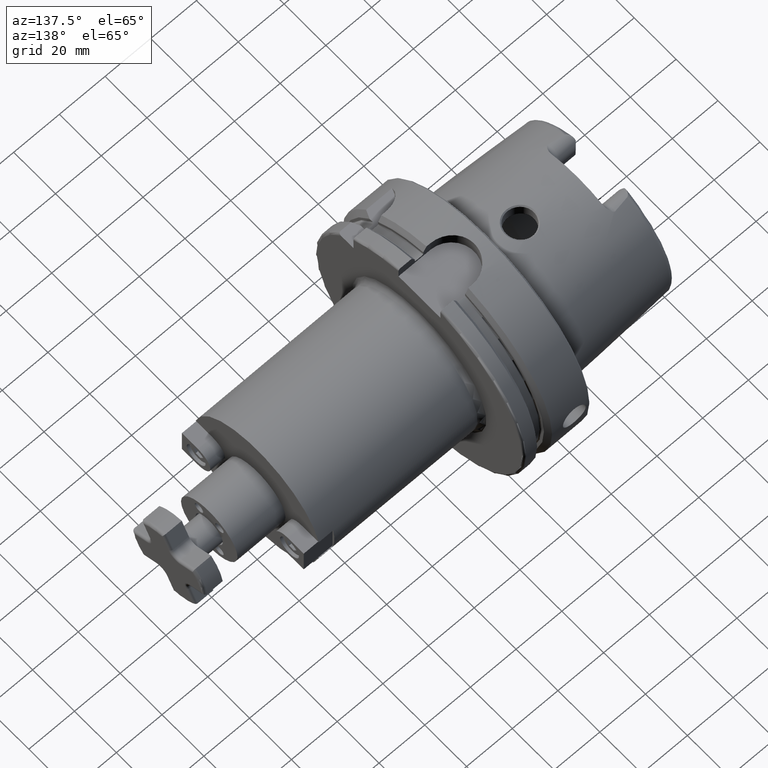
[diagram: clean part render]
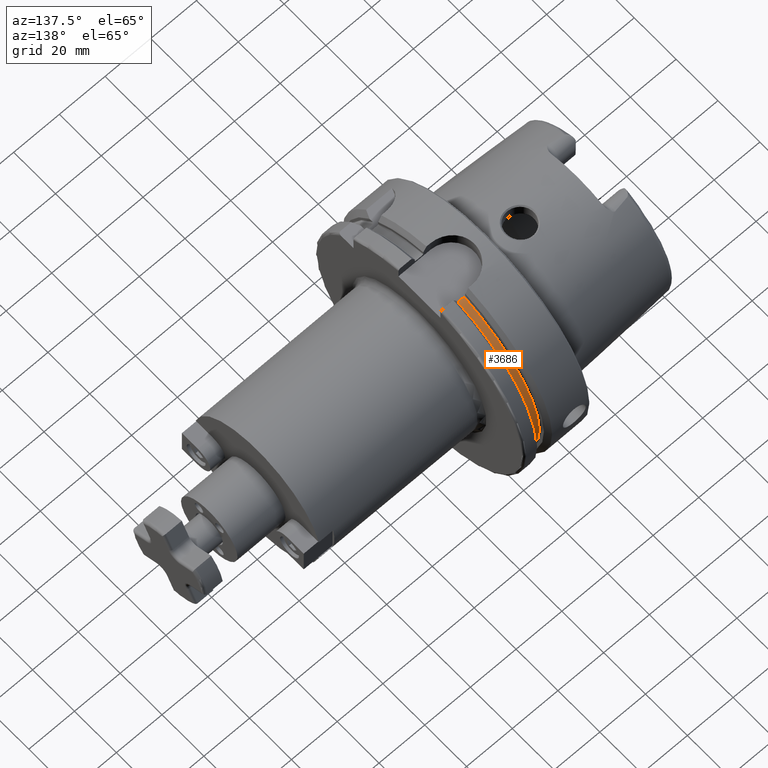
[diagram: same view with one face highlighted and labeled with its STEP entity id]
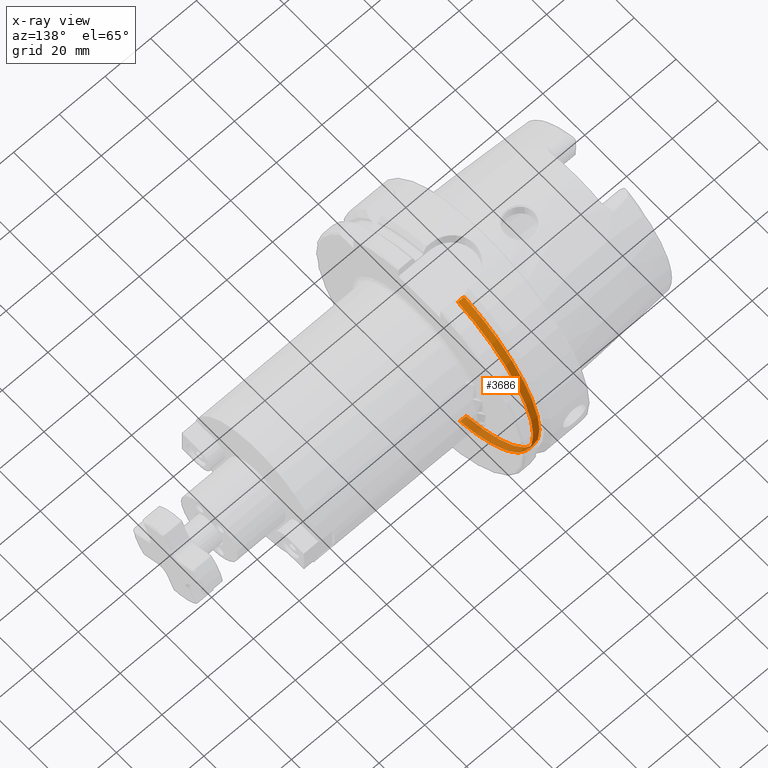
[diagram: x-ray of the same camera — body ghosted, the highlighted face saturated]
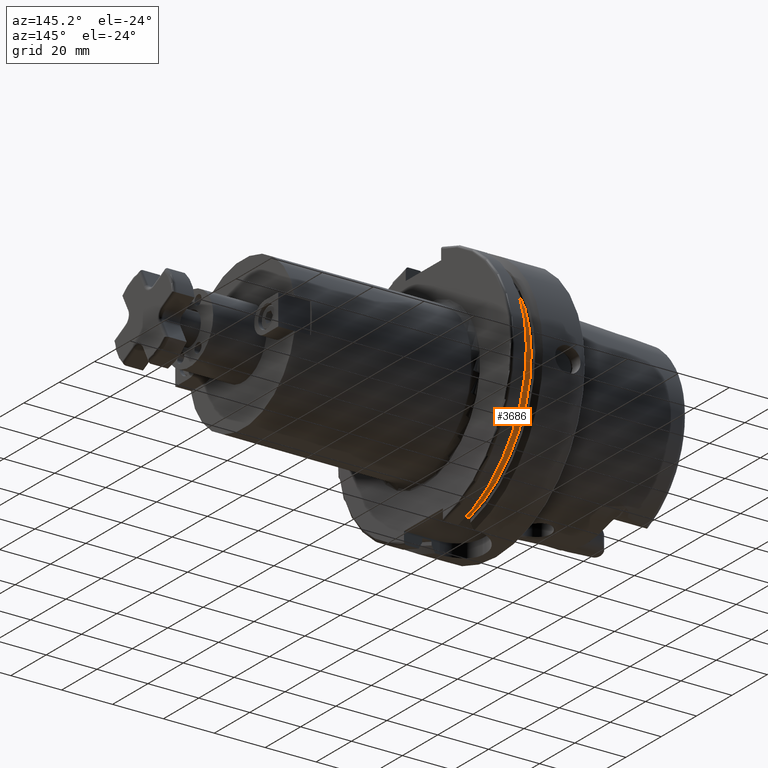
[diagram: same view with one face highlighted and labeled with its STEP entity id]
A machine part, auxiliary view. The second image highlights one B-rep face of the part: STEP entity #3686.
The next image is the same camera in x-ray: the body ghosted, the highlighted face saturated — about 29% of this face is hidden behind the body in this view.
A second angle (auxiliary view) of the same face is appended — the face is thin or edge-on in the first view.
In plain terms, the highlighted cylindrical surface (partial cylindrical patch) has radius 46 mm, axis along (1, 0, 0).
Its self-contained STEP definition (entity closure, byte-faithful):
#741=CYLINDRICAL_SURFACE('',#4137,46.);
#855=FACE_OUTER_BOUND('',#1061,.T.);
#1061=EDGE_LOOP('',(#3043,#3044,#3045,#3046));
#1276=LINE('',#6822,#1474);
#1290=LINE('',#6951,#1488);
#1474=VECTOR('',#4836,10.);
#1488=VECTOR('',#4896,10.);
#1670=CIRCLE('',#4136,46.);
#1671=CIRCLE('',#4138,46.);
#1978=VERTEX_POINT('',#6810);
#1979=VERTEX_POINT('',#6821);
#1998=VERTEX_POINT('',#6936);
#1999=VERTEX_POINT('',#6949);
#2353=EDGE_CURVE('',#1979,#1978,#1276,.T.);
#2384=EDGE_CURVE('',#1979,#1998,#1670,.T.);
#2386=EDGE_CURVE('',#1978,#1999,#1671,.T.);
#2387=EDGE_CURVE('',#1999,#1998,#1290,.T.);
#3043=ORIENTED_EDGE('',*,*,#2353,.T.);
#3044=ORIENTED_EDGE('',*,*,#2386,.T.);
#3045=ORIENTED_EDGE('',*,*,#2387,.T.);
#3046=ORIENTED_EDGE('',*,*,#2384,.F.);
#3686=ADVANCED_FACE('',(#855),#741,.T.);
#4136=AXIS2_PLACEMENT_3D('',#6937,#4890,#4891);
#4137=AXIS2_PLACEMENT_3D('',#6948,#4892,#4893);
#4138=AXIS2_PLACEMENT_3D('',#6950,#4894,#4895);
#4836=DIRECTION('',(-1.,0.,0.));
#4890=DIRECTION('center_axis',(1.,0.,0.));
#4891=DIRECTION('ref_axis',(0.,0.,-1.));
#4892=DIRECTION('center_axis',(1.,0.,0.));
#4893=DIRECTION('ref_axis',(0.,1.,0.));
#4894=DIRECTION('center_axis',(1.,0.,0.));
#4895=DIRECTION('ref_axis',(0.,0.,-1.));
#4896=DIRECTION('',(1.,0.,0.));
#6810=CARTESIAN_POINT('',(18.625,11.,-44.6654228682546));
#6821=CARTESIAN_POINT('',(21.375,11.,-44.6654228682546));
#6822=CARTESIAN_POINT('',(20.,11.,-44.6654228682546));
#6936=CARTESIAN_POINT('',(21.375,10.,44.8998886412873));
#6937=CARTESIAN_POINT('Origin',(21.375,0.,0.));
#6948=CARTESIAN_POINT('Origin',(20.,0.,0.));
#6949=CARTESIAN_POINT('',(18.625,10.,44.8998886412873));
#6950=CARTESIAN_POINT('Origin',(18.625,0.,0.));
#6951=CARTESIAN_POINT('',(20.,10.,44.8998886412873));